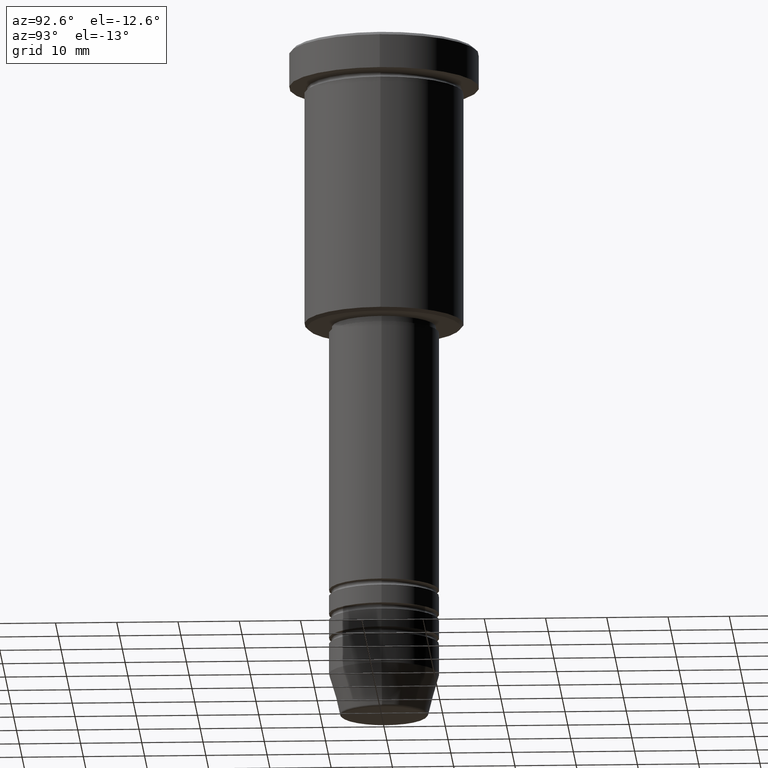
[diagram: clean part render]
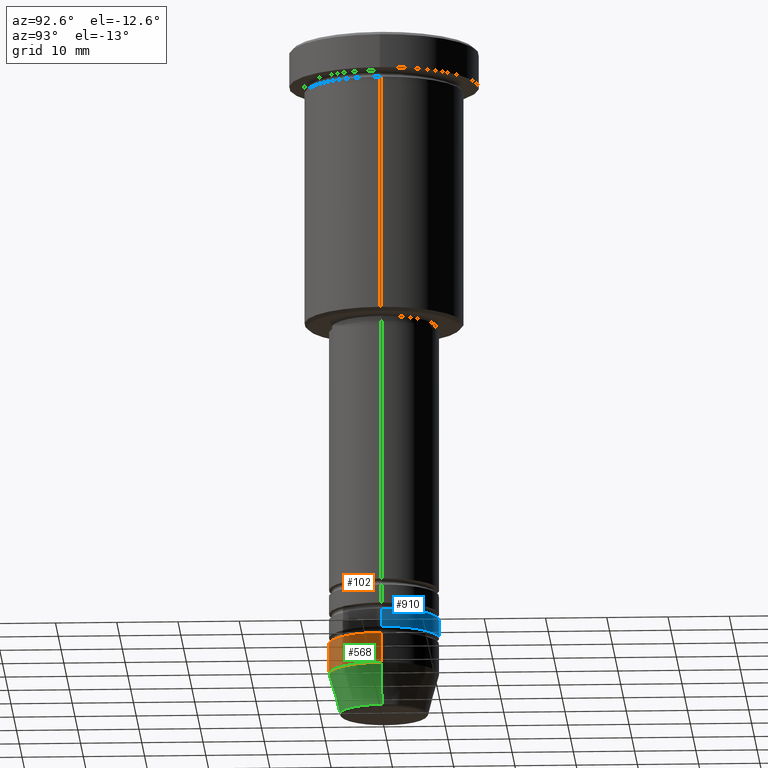
[diagram: same view with three faces highlighted in distinct colors, each labeled with its STEP entity id]
A machine part, auxiliary view with three faces highlighted in distinct colors.
Their STEP definitions:

[orange] entity #102 — the highlighted cylindrical surface (partial cylindrical patch) has radius 9 mm, axis along (-0, -0, 1).
#39 = LINE ( 'NONE', #923, #920 ) ;
#51 = ORIENTED_EDGE ( 'NONE', *, *, #812, .F. ) ;
#60 = CARTESIAN_POINT ( 'NONE',  ( 0.000000000000000000, 0.000000000000000000, 0.000000000000000000 ) ) ;
#101 = CARTESIAN_POINT ( 'NONE',  ( 9.000000000000000000, 0.000000000000000000, -104.0000000000000142 ) ) ;
#102 = ADVANCED_FACE ( 'NONE', ( #176 ), #799, .T. ) ;
#169 = VECTOR ( 'NONE', #895, 1000.000000000000000 ) ;
#176 = FACE_OUTER_BOUND ( 'NONE', #455, .T. ) ;
#182 = AXIS2_PLACEMENT_3D ( 'NONE', #1181, #530, #446 ) ;
#252 = ORIENTED_EDGE ( 'NONE', *, *, #431, .T. ) ;
#284 = DIRECTION ( 'NONE',  ( -0.000000000000000000, -0.000000000000000000, 1.000000000000000000 ) ) ;
#319 = VERTEX_POINT ( 'NONE', #599 ) ;
#431 = EDGE_CURVE ( 'NONE', #1050, #1011, #546, .T. ) ;
#446 = DIRECTION ( 'NONE',  ( 1.000000000000000000, 0.000000000000000000, 0.000000000000000000 ) ) ;
#455 = EDGE_LOOP ( 'NONE', ( #687, #252, #1048, #51 ) ) ;
#477 = AXIS2_PLACEMENT_3D ( 'NONE', #975, #971, #1095 ) ;
#522 = DIRECTION ( 'NONE',  ( 1.000000000000000000, 0.000000000000000000, 0.000000000000000000 ) ) ;
#530 = DIRECTION ( 'NONE',  ( -0.000000000000000000, -0.000000000000000000, 1.000000000000000000 ) ) ;
#546 = CIRCLE ( 'NONE', #182, 9.000000000000000000 ) ;
#599 = CARTESIAN_POINT ( 'NONE',  ( -9.000000000000000000, 1.102182119232617714E-15, -99.00000000000000000 ) ) ;
#600 = CARTESIAN_POINT ( 'NONE',  ( -9.000000000000000000, 1.102182119232617714E-15, -104.0000000000000142 ) ) ;
#687 = ORIENTED_EDGE ( 'NONE', *, *, #860, .F. ) ;
#702 = EDGE_CURVE ( 'NONE', #1011, #944, #39, .T. ) ;
#750 = AXIS2_PLACEMENT_3D ( 'NONE', #60, #777, #522 ) ;
#777 = DIRECTION ( 'NONE',  ( -0.000000000000000000, -0.000000000000000000, 1.000000000000000000 ) ) ;
#799 = CYLINDRICAL_SURFACE ( 'NONE', #750, 9.000000000000000000 ) ;
#812 = EDGE_CURVE ( 'NONE', #319, #944, #978, .T. ) ;
#860 = EDGE_CURVE ( 'NONE', #1050, #319, #1073, .T. ) ;
#895 = DIRECTION ( 'NONE',  ( -0.000000000000000000, -0.000000000000000000, 1.000000000000000000 ) ) ;
#920 = VECTOR ( 'NONE', #284, 1000.000000000000000 ) ;
#923 = CARTESIAN_POINT ( 'NONE',  ( 9.000000000000000000, 0.000000000000000000, 0.000000000000000000 ) ) ;
#944 = VERTEX_POINT ( 'NONE', #1108 ) ;
#971 = DIRECTION ( 'NONE',  ( -0.000000000000000000, -0.000000000000000000, 1.000000000000000000 ) ) ;
#975 = CARTESIAN_POINT ( 'NONE',  ( 0.000000000000000000, 0.000000000000000000, -99.00000000000000000 ) ) ;
#978 = CIRCLE ( 'NONE', #477, 9.000000000000000000 ) ;
#1011 = VERTEX_POINT ( 'NONE', #101 ) ;
#1048 = ORIENTED_EDGE ( 'NONE', *, *, #702, .T. ) ;
#1050 = VERTEX_POINT ( 'NONE', #600 ) ;
#1073 = LINE ( 'NONE', #1170, #169 ) ;
#1095 = DIRECTION ( 'NONE',  ( 1.000000000000000000, 0.000000000000000000, 0.000000000000000000 ) ) ;
#1108 = CARTESIAN_POINT ( 'NONE',  ( 9.000000000000000000, 0.000000000000000000, -99.00000000000000000 ) ) ;
#1170 = CARTESIAN_POINT ( 'NONE',  ( -9.000000000000000000, 1.102182119232617714E-15, 0.000000000000000000 ) ) ;
#1181 = CARTESIAN_POINT ( 'NONE',  ( 0.000000000000000000, 0.000000000000000000, -104.0000000000000142 ) ) ;

[blue] entity #910 — the highlighted cylindrical surface (partial cylindrical patch) has radius 9 mm, axis along (-0, -0, 1).
#131 = CARTESIAN_POINT ( 'NONE',  ( 0.000000000000000000, 0.000000000000000000, -94.99999999999988631 ) ) ;
#134 = ORIENTED_EDGE ( 'NONE', *, *, #1138, .T. ) ;
#150 = CARTESIAN_POINT ( 'NONE',  ( 9.000000000000001776, 0.000000000000000000, -97.99999999999988631 ) ) ;
#152 = AXIS2_PLACEMENT_3D ( 'NONE', #1033, #594, #517 ) ;
#178 = LINE ( 'NONE', #623, #346 ) ;
#244 = AXIS2_PLACEMENT_3D ( 'NONE', #930, #665, #391 ) ;
#267 = DIRECTION ( 'NONE',  ( -0.000000000000000000, -0.000000000000000000, 1.000000000000000000 ) ) ;
#280 = CIRCLE ( 'NONE', #152, 9.000000000000001776 ) ;
#311 = DIRECTION ( 'NONE',  ( -0.000000000000000000, -0.000000000000000000, 1.000000000000000000 ) ) ;
#346 = VECTOR ( 'NONE', #552, 1000.000000000000000 ) ;
#348 = AXIS2_PLACEMENT_3D ( 'NONE', #131, #311, #668 ) ;
#391 = DIRECTION ( 'NONE',  ( 1.000000000000000000, 0.000000000000000000, 0.000000000000000000 ) ) ;
#392 = EDGE_CURVE ( 'NONE', #394, #967, #178, .T. ) ;
#394 = VERTEX_POINT ( 'NONE', #461 ) ;
#402 = ORIENTED_EDGE ( 'NONE', *, *, #819, .F. ) ;
#461 = CARTESIAN_POINT ( 'NONE',  ( -9.000000000000001776, 1.102182119232617911E-15, -97.99999999999988631 ) ) ;
#475 = CYLINDRICAL_SURFACE ( 'NONE', #244, 9.000000000000001776 ) ;
#517 = DIRECTION ( 'NONE',  ( 1.000000000000000000, 0.000000000000000000, 0.000000000000000000 ) ) ;
#534 = LINE ( 'NONE', #723, #626 ) ;
#552 = DIRECTION ( 'NONE',  ( -0.000000000000000000, -0.000000000000000000, 1.000000000000000000 ) ) ;
#571 = VERTEX_POINT ( 'NONE', #730 ) ;
#594 = DIRECTION ( 'NONE',  ( -0.000000000000000000, -0.000000000000000000, 1.000000000000000000 ) ) ;
#623 = CARTESIAN_POINT ( 'NONE',  ( -9.000000000000001776, 1.102182119232617911E-15, 0.000000000000000000 ) ) ;
#626 = VECTOR ( 'NONE', #267, 1000.000000000000000 ) ;
#665 = DIRECTION ( 'NONE',  ( -0.000000000000000000, -0.000000000000000000, 1.000000000000000000 ) ) ;
#668 = DIRECTION ( 'NONE',  ( 1.000000000000000000, 0.000000000000000000, 0.000000000000000000 ) ) ;
#669 = EDGE_CURVE ( 'NONE', #571, #967, #786, .T. ) ;
#680 = ORIENTED_EDGE ( 'NONE', *, *, #669, .F. ) ;
#723 = CARTESIAN_POINT ( 'NONE',  ( 9.000000000000001776, 0.000000000000000000, 0.000000000000000000 ) ) ;
#730 = CARTESIAN_POINT ( 'NONE',  ( 9.000000000000000000, 0.000000000000000000, -94.99999999999988631 ) ) ;
#759 = FACE_OUTER_BOUND ( 'NONE', #793, .T. ) ;
#786 = CIRCLE ( 'NONE', #348, 9.000000000000000000 ) ;
#793 = EDGE_LOOP ( 'NONE', ( #134, #814, #680, #402 ) ) ;
#814 = ORIENTED_EDGE ( 'NONE', *, *, #392, .T. ) ;
#819 = EDGE_CURVE ( 'NONE', #1090, #571, #534, .T. ) ;
#910 = ADVANCED_FACE ( 'NONE', ( #759 ), #475, .T. ) ;
#930 = CARTESIAN_POINT ( 'NONE',  ( 0.000000000000000000, 0.000000000000000000, 0.000000000000000000 ) ) ;
#967 = VERTEX_POINT ( 'NONE', #1104 ) ;
#1033 = CARTESIAN_POINT ( 'NONE',  ( 0.000000000000000000, 0.000000000000000000, -97.99999999999988631 ) ) ;
#1090 = VERTEX_POINT ( 'NONE', #150 ) ;
#1104 = CARTESIAN_POINT ( 'NONE',  ( -9.000000000000000000, 1.102182119232617714E-15, -94.99999999999988631 ) ) ;
#1138 = EDGE_CURVE ( 'NONE', #1090, #394, #280, .T. ) ;

[green] entity #568 — the highlighted conical surface has half-angle 15 deg.
#80 = CARTESIAN_POINT ( 'NONE',  ( 0.000000000000000000, 0.000000000000000000, -110.6294095225512848 ) ) ;
#101 = CARTESIAN_POINT ( 'NONE',  ( 9.000000000000000000, 0.000000000000000000, -104.0000000000000142 ) ) ;
#112 = EDGE_CURVE ( 'NONE', #606, #775, #544, .T. ) ;
#155 = LINE ( 'NONE', #874, #456 ) ;
#182 = AXIS2_PLACEMENT_3D ( 'NONE', #1181, #530, #446 ) ;
#237 = AXIS2_PLACEMENT_3D ( 'NONE', #80, #1149, #338 ) ;
#240 = EDGE_CURVE ( 'NONE', #775, #1011, #155, .T. ) ;
#281 = FACE_OUTER_BOUND ( 'NONE', #887, .T. ) ;
#338 = DIRECTION ( 'NONE',  ( 1.000000000000000000, 0.000000000000000000, 0.000000000000000000 ) ) ;
#353 = DIRECTION ( 'NONE',  ( -0.2588190451025213501, 3.169619151431772337E-17, 0.9659258262890680902 ) ) ;
#364 = VECTOR ( 'NONE', #353, 1000.000000000000000 ) ;
#369 = CARTESIAN_POINT ( 'NONE',  ( 7.223655072137188604, 0.000000000000000000, -110.6294095225512848 ) ) ;
#384 = CARTESIAN_POINT ( 'NONE',  ( -7.223655072137189492, 9.934123627281765110E-16, -110.6294095225512848 ) ) ;
#418 = ORIENTED_EDGE ( 'NONE', *, *, #491, .F. ) ;
#431 = EDGE_CURVE ( 'NONE', #1050, #1011, #546, .T. ) ;
#442 = AXIS2_PLACEMENT_3D ( 'NONE', #911, #916, #813 ) ;
#446 = DIRECTION ( 'NONE',  ( 1.000000000000000000, 0.000000000000000000, 0.000000000000000000 ) ) ;
#456 = VECTOR ( 'NONE', #1128, 1000.000000000000000 ) ;
#491 = EDGE_CURVE ( 'NONE', #606, #1050, #1162, .T. ) ;
#530 = DIRECTION ( 'NONE',  ( -0.000000000000000000, -0.000000000000000000, 1.000000000000000000 ) ) ;
#544 = CIRCLE ( 'NONE', #237, 7.223655072137188604 ) ;
#546 = CIRCLE ( 'NONE', #182, 9.000000000000000000 ) ;
#559 = ORIENTED_EDGE ( 'NONE', *, *, #431, .F. ) ;
#568 = ADVANCED_FACE ( 'NONE', ( #281 ), #1179, .T. ) ;
#600 = CARTESIAN_POINT ( 'NONE',  ( -9.000000000000000000, 1.102182119232617714E-15, -104.0000000000000142 ) ) ;
#606 = VERTEX_POINT ( 'NONE', #384 ) ;
#771 = ORIENTED_EDGE ( 'NONE', *, *, #112, .T. ) ;
#775 = VERTEX_POINT ( 'NONE', #369 ) ;
#813 = DIRECTION ( 'NONE',  ( 1.000000000000000000, 0.000000000000000000, 0.000000000000000000 ) ) ;
#874 = CARTESIAN_POINT ( 'NONE',  ( 9.000000000000000000, 0.000000000000000000, -104.0000000000000142 ) ) ;
#887 = EDGE_LOOP ( 'NONE', ( #418, #771, #1150, #559 ) ) ;
#892 = CARTESIAN_POINT ( 'NONE',  ( -9.000000000000000000, 1.102182119232617714E-15, -104.0000000000000142 ) ) ;
#911 = CARTESIAN_POINT ( 'NONE',  ( 0.000000000000000000, 0.000000000000000000, -104.0000000000000142 ) ) ;
#916 = DIRECTION ( 'NONE',  ( -0.000000000000000000, -0.000000000000000000, 1.000000000000000000 ) ) ;
#1011 = VERTEX_POINT ( 'NONE', #101 ) ;
#1050 = VERTEX_POINT ( 'NONE', #600 ) ;
#1128 = DIRECTION ( 'NONE',  ( 0.2588190451025213501, 0.000000000000000000, 0.9659258262890680902 ) ) ;
#1149 = DIRECTION ( 'NONE',  ( -0.000000000000000000, -0.000000000000000000, 1.000000000000000000 ) ) ;
#1150 = ORIENTED_EDGE ( 'NONE', *, *, #240, .T. ) ;
#1162 = LINE ( 'NONE', #892, #364 ) ;
#1179 = CONICAL_SURFACE ( 'NONE', #442, 9.000000000000000000, 0.2617993877991500740 ) ;
#1181 = CARTESIAN_POINT ( 'NONE',  ( 0.000000000000000000, 0.000000000000000000, -104.0000000000000142 ) ) ;